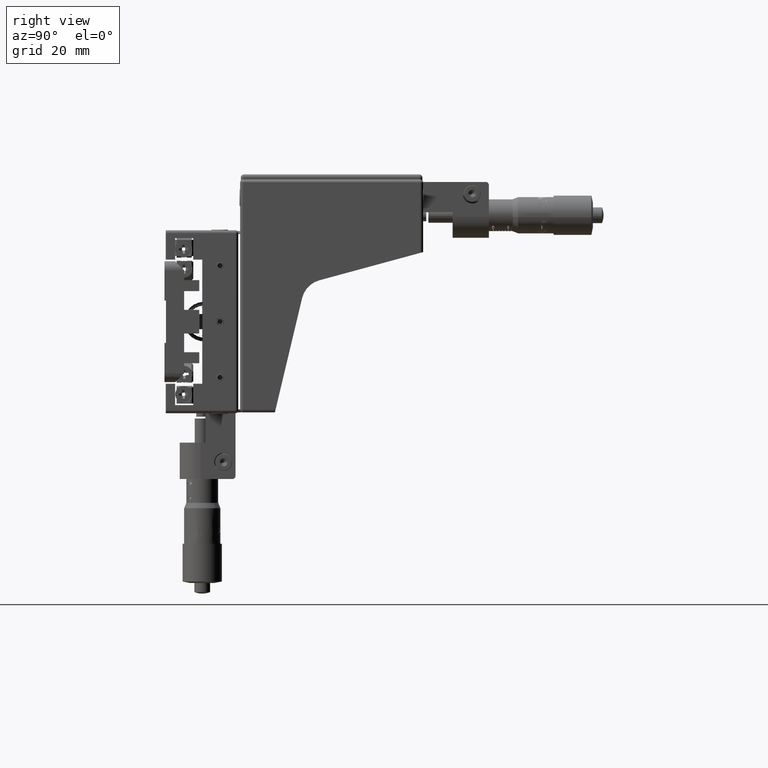
[diagram: clean part render]
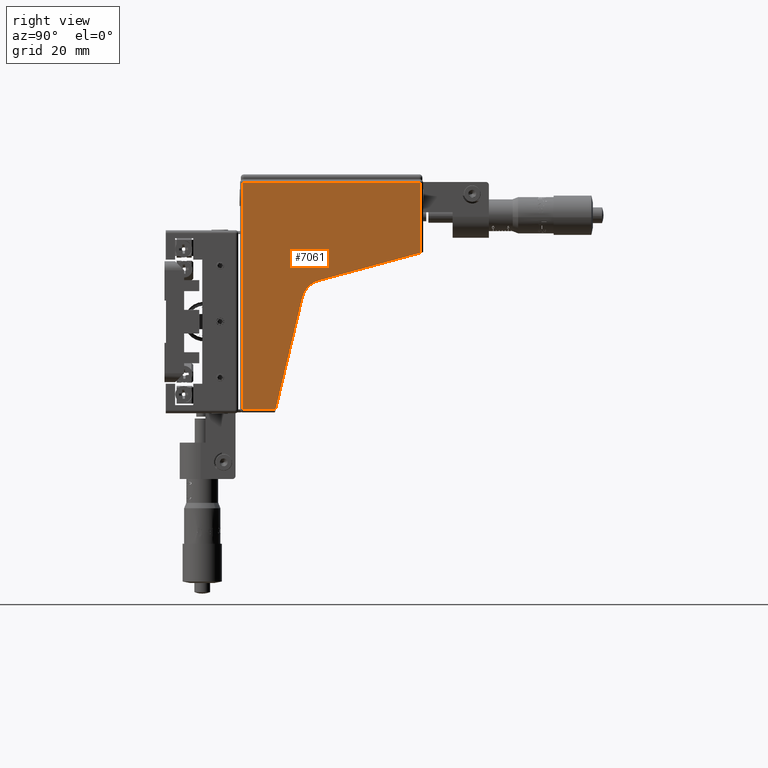
[diagram: same view with one face highlighted and labeled with its STEP entity id]
A machine part, right view. The second image highlights one B-rep face of the part: STEP entity #7061.
In plain terms, the highlighted planar face has unit normal (-1, 0, 0).
Its self-contained STEP definition (entity closure, byte-faithful):
#640 = CARTESIAN_POINT ( 'NONE',  ( 30.25000000000048000, 84.29999999999988300, 46.00000000000137800 ) ) ;
#1415 = CARTESIAN_POINT ( 'NONE',  ( 30.25000000000023800, 85.29999999999988300, 23.00004236723138400 ) ) ;
#2750 = CARTESIAN_POINT ( 'NONE',  ( 30.25000000000006400, 53.09020302999081800, 5.960000000001381100 ) ) ;
#2949 = LINE ( 'NONE', #86709, #74298 ) ;
#4623 = AXIS2_PLACEMENT_3D ( 'NONE', #2750, #51011, #9681 ) ;
#4772 = DIRECTION ( 'NONE',  ( 1.535230276239501100E-016, 1.000000000000000000, -2.374402757743618900E-017 ) ) ;
#7061 = ADVANCED_FACE ( 'NONE', ( #19370 ), #85173, .F. ) ;
#8292 = CARTESIAN_POINT ( 'NONE',  ( 30.24999999999969800, 25.79999999999989800, -28.99999999999861800 ) ) ;
#9681 = DIRECTION ( 'NONE',  ( 1.033201302291786600E-014, 2.374402757743496300E-017, 1.000000000000000000 ) ) ;
#11215 = DIRECTION ( 'NONE',  ( 1.033201302291786600E-014, 2.374402757743496300E-017, 1.000000000000000000 ) ) ;
#11423 = CARTESIAN_POINT ( 'NONE',  ( 30.25000000000023800, 84.29999999999988300, 22.72838276176971900 ) ) ;
#12093 = LINE ( 'NONE', #22507, #81206 ) ;
#13612 = VECTOR ( 'NONE', #4772, 1000.000000000000000 ) ;
#15377 = ORIENTED_EDGE ( 'NONE', *, *, #74297, .T. ) ;
#16496 = VECTOR ( 'NONE', #49605, 1000.000000000000000 ) ;
#17197 = VECTOR ( 'NONE', #82041, 1000.000000000000200 ) ;
#18616 = CARTESIAN_POINT ( 'NONE',  ( 30.25000000000006400, 53.09020302999081800, 5.960000000001381100 ) ) ;
#19370 = FACE_OUTER_BOUND ( 'NONE', #23163, .T. ) ;
#20939 = VERTEX_POINT ( 'NONE', #70801 ) ;
#22507 = CARTESIAN_POINT ( 'NONE',  ( 30.25000000000047600, 25.79999999999990100, 46.00000000000137800 ) ) ;
#23163 = EDGE_LOOP ( 'NONE', ( #37997, #56780, #39746, #64815, #29602, #88602, #15377 ) ) ;
#25555 = DIRECTION ( 'NONE',  ( 1.040834085586084300E-014, 0.0000000000000000000, 1.000000000000000000 ) ) ;
#25910 = EDGE_CURVE ( 'NONE', #59353, #59739, #66575, .T. ) ;
#26071 = AXIS2_PLACEMENT_3D ( 'NONE', #18616, #66959, #25555 ) ;
#26205 = EDGE_CURVE ( 'NONE', #47341, #78752, #64292, .T. ) ;
#29454 = DIRECTION ( 'NONE',  ( -1.535230276239501100E-016, -1.000000000000000000, 2.374402757743618900E-017 ) ) ;
#29602 = ORIENTED_EDGE ( 'NONE', *, *, #26205, .F. ) ;
#30215 = CARTESIAN_POINT ( 'NONE',  ( 30.25000000000014200, 50.99299999999988100, 13.68021628265803000 ) ) ;
#30870 = EDGE_CURVE ( 'NONE', #47341, #70048, #2949, .T. ) ;
#37997 = ORIENTED_EDGE ( 'NONE', *, *, #67947, .T. ) ;
#39746 = ORIENTED_EDGE ( 'NONE', *, *, #85067, .F. ) ;
#46033 = CIRCLE ( 'NONE', #26071, 8.000000000000000000 ) ;
#46067 = CARTESIAN_POINT ( 'NONE',  ( 30.24999999999969800, 36.30026918336592700, -28.99999999999861800 ) ) ;
#46400 = CARTESIAN_POINT ( 'NONE',  ( 30.25000000000047600, 25.79999999999989800, 46.00000000000137800 ) ) ;
#47341 = VERTEX_POINT ( 'NONE', #11423 ) ;
#49605 = DIRECTION ( 'NONE',  ( -1.033201302291786600E-014, -2.374402757743496300E-017, -1.000000000000000000 ) ) ;
#51011 = DIRECTION ( 'NONE',  ( -1.000000000000000000, 9.801187639273051100E-017, 1.033201302291786600E-014 ) ) ;
#54399 = CARTESIAN_POINT ( 'NONE',  ( 30.24999999999969800, 36.53848071392694400, -28.99999999999861800 ) ) ;
#56780 = ORIENTED_EDGE ( 'NONE', *, *, #25910, .T. ) ;
#59353 = VERTEX_POINT ( 'NONE', #66143 ) ;
#59739 = VERTEX_POINT ( 'NONE', #54399 ) ;
#64292 = LINE ( 'NONE', #1415, #82634 ) ;
#64815 = ORIENTED_EDGE ( 'NONE', *, *, #83542, .F. ) ;
#66143 = CARTESIAN_POINT ( 'NONE',  ( 30.24999999999969800, 25.79999999999989800, -28.99999999999861800 ) ) ;
#66575 = LINE ( 'NONE', #46067, #13612 ) ;
#66959 = DIRECTION ( 'NONE',  ( 1.000000000000000000, -9.801187639273051100E-017, -1.033201302291786500E-014 ) ) ;
#67947 = EDGE_CURVE ( 'NONE', #68958, #59353, #71666, .T. ) ;
#68958 = VERTEX_POINT ( 'NONE', #46400 ) ;
#70048 = VERTEX_POINT ( 'NONE', #640 ) ;
#70801 = CARTESIAN_POINT ( 'NONE',  ( 30.25000000000007800, 45.30799999999989300, 7.814000000001375000 ) ) ;
#71666 = LINE ( 'NONE', #8292, #16496 ) ;
#74297 = EDGE_CURVE ( 'NONE', #70048, #68958, #12093, .T. ) ;
#74298 = VECTOR ( 'NONE', #11215, 1000.000000000000000 ) ;
#77490 = DIRECTION ( 'NONE',  ( -2.856776311297510600E-015, -0.9650248887684033100, -0.2621582805435118700 ) ) ;
#78752 = VERTEX_POINT ( 'NONE', #30215 ) ;
#81206 = VECTOR ( 'NONE', #29454, 1000.000000000000000 ) ;
#82041 = DIRECTION ( 'NONE',  ( -1.008635857524716100E-014, -0.2317275839231485400, -0.9727807187897692400 ) ) ;
#82634 = VECTOR ( 'NONE', #77490, 1000.000000000000200 ) ;
#83542 = EDGE_CURVE ( 'NONE', #78752, #20939, #46033, .T. ) ;
#85067 = EDGE_CURVE ( 'NONE', #20939, #59739, #88508, .T. ) ;
#85173 = PLANE ( 'NONE',  #4623 ) ;
#86709 = CARTESIAN_POINT ( 'NONE',  ( 30.25000000000048000, 84.29999999999988300, 46.00000000000137100 ) ) ;
#88508 = LINE ( 'NONE', #89028, #17197 ) ;
#88602 = ORIENTED_EDGE ( 'NONE', *, *, #30870, .T. ) ;
#89028 = CARTESIAN_POINT ( 'NONE',  ( 30.24999999999968400, 36.30026918336592700, -29.99999999999861800 ) ) ;